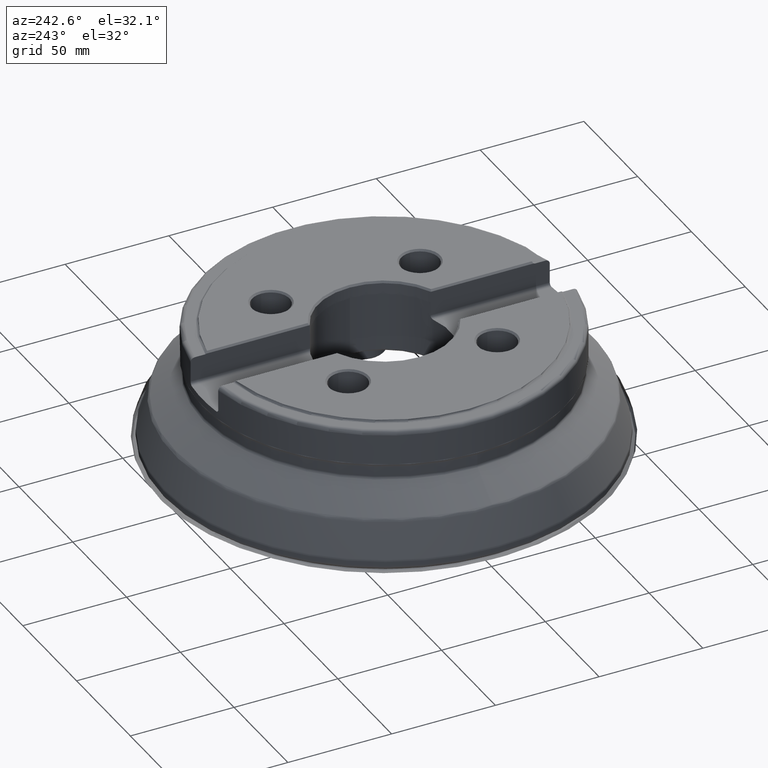
[diagram: clean part render]
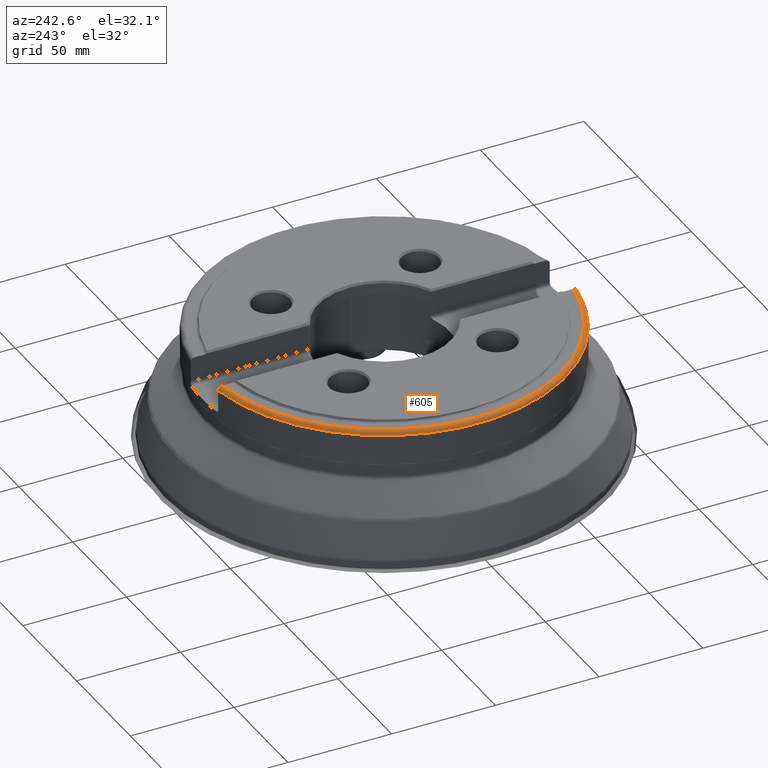
[diagram: same view with one face highlighted and labeled with its STEP entity id]
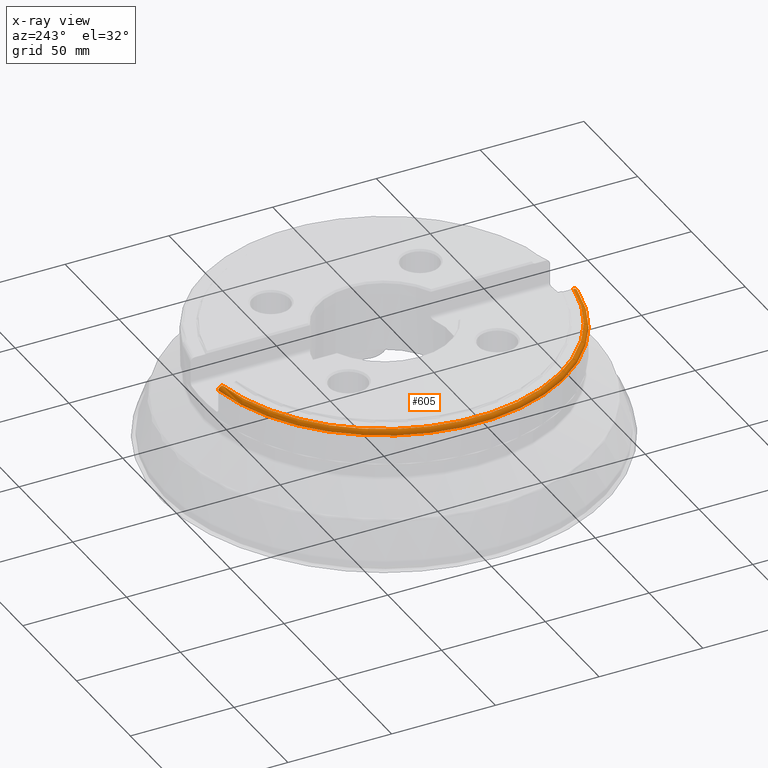
[diagram: x-ray of the same camera — body ghosted, the highlighted face saturated]
A machine part, auxiliary view. The second image highlights one B-rep face of the part: STEP entity #605.
The next image is the same camera in x-ray: the body ghosted, the highlighted face saturated — about 0% of this face is hidden behind the body in this view.
In plain terms, the highlighted toroidal blend (fillet) surface has major radius 85.5 mm and minor (blend) radius 2 mm.
Its self-contained STEP definition (entity closure, byte-faithful):
#172=TOROIDAL_SURFACE('',#2679,85.5,2.);
#280=FACE_OUTER_BOUND('',#970,.T.);
#605=ADVANCED_FACE('',(#280),#172,.T.);
#970=EDGE_LOOP('',(#1277,#1278,#1279,#1280));
#1277=ORIENTED_EDGE('',*,*,#2061,.F.);
#1278=ORIENTED_EDGE('',*,*,#2087,.F.);
#1279=ORIENTED_EDGE('',*,*,#2072,.F.);
#1280=ORIENTED_EDGE('',*,*,#2091,.F.);
#1842=VERTEX_POINT('',#4034);
#1843=VERTEX_POINT('',#4054);
#1853=VERTEX_POINT('',#4090);
#1854=VERTEX_POINT('',#4107);
#2061=EDGE_CURVE('',#1842,#1843,#2565,.T.);
#2072=EDGE_CURVE('',#1853,#1854,#2569,.T.);
#2087=EDGE_CURVE('',#1854,#1842,#2366,.T.);
#2091=EDGE_CURVE('',#1843,#1853,#2369,.T.);
#2366=CIRCLE('',#2650,85.5);
#2369=CIRCLE('',#2654,87.5);
#2565=B_SPLINE_CURVE_WITH_KNOTS('',3,(#4035,#4036,#4037,#4038,#4039,#4040,
#4041,#4042,#4043,#4044,#4045,#4046,#4047,#4048,#4049,#4050,#4051,#4052,
#4053),.UNSPECIFIED.,.F.,.F.,(4,3,3,3,3,3,4),(0.,0.0762609221770121,0.294903940561,
0.512930456815385,0.729010046956541,0.862521352440512,1.),.UNSPECIFIED.);
#2569=B_SPLINE_CURVE_WITH_KNOTS('',3,(#4091,#4092,#4093,#4094,#4095,#4096,
#4097,#4098,#4099,#4100,#4101,#4102,#4103,#4104,#4105,#4106),
 .UNSPECIFIED.,.F.,.F.,(4,3,3,3,3,4),(0.,0.184208706892935,0.395495057103954,
0.607957202810627,0.822570587269858,1.),.UNSPECIFIED.);
#2650=AXIS2_PLACEMENT_3D('',#4155,#3018,#3019);
#2654=AXIS2_PLACEMENT_3D('',#4177,#3026,#3027);
#2679=AXIS2_PLACEMENT_3D('',#4267,#3076,#3077);
#3018=DIRECTION('',(1.17145536458252E-15,0.,1.));
#3019=DIRECTION('',(-1.,0.,1.13619315385615E-15));
#3026=DIRECTION('',(-1.17145536458252E-15,0.,-1.));
#3027=DIRECTION('',(-1.,0.,1.18952466924124E-15));
#3076=DIRECTION('',(-1.17145536458252E-15,0.,-1.));
#3077=DIRECTION('',(-1.,0.,1.18952466924124E-15));
#4034=CARTESIAN_POINT('',(-12.8499999999999,-84.5288560197049,62.4999999999999));
#4035=CARTESIAN_POINT('',(-12.8499999999999,-84.5288560197049,62.4999999999999));
#4036=CARTESIAN_POINT('',(-12.8499999999999,-84.6092066648795,62.4999999999999));
#4037=CARTESIAN_POINT('',(-12.8499999999999,-84.6896964959329,62.4952511295026));
#4038=CARTESIAN_POINT('',(-12.8499999999999,-84.7694893160768,62.4857995670149));
#4039=CARTESIAN_POINT('',(-12.8499999999999,-84.9968583440728,62.4588674123173));
#4040=CARTESIAN_POINT('',(-12.8499999999999,-85.2227533515321,62.3922977167412));
#4041=CARTESIAN_POINT('',(-12.8499999999999,-85.4282816989508,62.2914011644918));
#4042=CARTESIAN_POINT('',(-12.8499999999999,-85.6332112624327,62.1907985631039));
#4043=CARTESIAN_POINT('',(-12.8499999999999,-85.8236022794881,62.0532250380564));
#4044=CARTESIAN_POINT('',(-12.8499999999999,-85.9831633492135,61.8899544821591));
#4045=CARTESIAN_POINT('',(-12.8499999999999,-86.1413068147329,61.728134487023));
#4046=CARTESIAN_POINT('',(-12.8499999999999,-86.2735718947148,61.5365175635909));
#4047=CARTESIAN_POINT('',(-12.8499999999999,-86.3684502773116,61.331107829089));
#4048=CARTESIAN_POINT('',(-12.8499999999999,-86.4276018337344,61.2030459337696));
#4049=CARTESIAN_POINT('',(-12.8499999999999,-86.4733091305927,61.0678952470477));
#4050=CARTESIAN_POINT('',(-12.8499999999999,-86.5039694055788,60.9302046402591));
#4051=CARTESIAN_POINT('',(-12.8499999999999,-86.5353260442167,60.7893867707889));
#4052=CARTESIAN_POINT('',(-12.8499999999999,-86.5512998169294,60.6442668054292));
#4053=CARTESIAN_POINT('',(-12.8499999999999,-86.5512998169294,60.4999999999999));
#4054=CARTESIAN_POINT('',(-12.8499999999999,-86.5512998169294,60.4999999999999));
#4090=CARTESIAN_POINT('',(-12.8499999999999,86.5512998169293,60.4999999999999));
#4091=CARTESIAN_POINT('',(-12.8499999999999,86.5512998169293,60.4999999999999));
#4092=CARTESIAN_POINT('',(-12.8499999999999,86.5512998169293,60.6931862383986));
#4093=CARTESIAN_POINT('',(-12.8499999999999,86.5223812727279,60.8884020979133));
#4094=CARTESIAN_POINT('',(-12.8499999999999,86.4664456989681,61.0733132503483));
#4095=CARTESIAN_POINT('',(-12.8499999999999,86.4022940964462,61.2853848526492));
#4096=CARTESIAN_POINT('',(-12.8499999999999,86.3007377478926,61.4892696937935));
#4097=CARTESIAN_POINT('',(-12.8499999999999,86.1703623080703,61.6684121993575));
#4098=CARTESIAN_POINT('',(-12.8499999999999,86.039256796466,61.8485578607954));
#4099=CARTESIAN_POINT('',(-12.8499999999999,85.8754703406939,62.0086015251065));
#4100=CARTESIAN_POINT('',(-12.8499999999999,85.6925690935285,62.1358345722809));
#4101=CARTESIAN_POINT('',(-12.8499999999999,85.507831851304,62.2643448072799));
#4102=CARTESIAN_POINT('',(-12.8499999999999,85.2985855527593,62.3628973451296));
#4103=CARTESIAN_POINT('',(-12.8499999999999,85.081940752146,62.4237887199819));
#4104=CARTESIAN_POINT('',(-12.8499999999999,84.9027793528184,62.4741448046635));
#4105=CARTESIAN_POINT('',(-12.8499999999999,84.7149595991263,62.4999999999999));
#4106=CARTESIAN_POINT('',(-12.8499999999999,84.5288560197049,62.4999999999999));
#4107=CARTESIAN_POINT('',(-12.8499999999999,84.5288560197049,62.4999999999999));
#4155=CARTESIAN_POINT('',(7.32159602864076E-14,0.,62.4999999999999));
#4177=CARTESIAN_POINT('',(7.08730495572425E-14,0.,60.4999999999998));
#4267=CARTESIAN_POINT('',(7.08730495572425E-14,0.,60.4999999999998));